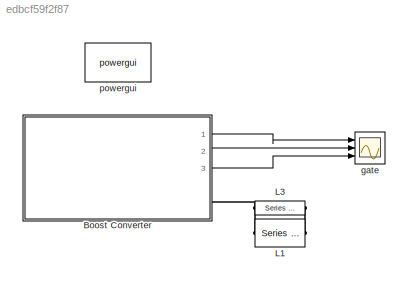
MODEL slx_edbcf59f2f87
KIND model
CONFIG AbsTol = auto
CONFIG EnableMultiTasking = on
CONFIG FixedStep = 1e-6
CONFIG MaxStep = auto
CONFIG MinStep = auto
CONFIG RelTol = 1e-3
CONFIG SampleTimeConstraint = Unconstrained
CONFIG Solver = FixedStepDiscrete
CONFIG SolverName = FixedStepDiscrete
CONFIG StartTime = 0.0
CONFIG StopTime = Inf
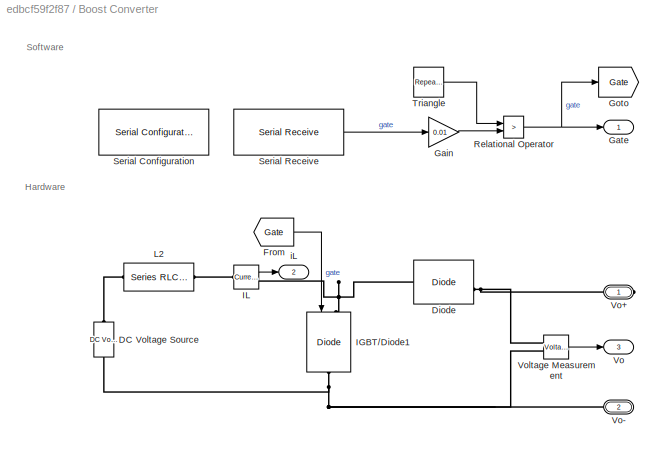
BLOCK [SubSystem] Boost Converter
  Ports = [0, 3, 0, 0, 0, 0, 2]
  RequestExecContextInheritance = off
BLOCK [Reference] Boost Converter/DC Voltage Source  REF=powerlib/Electrical
Sources/DC Voltage Source
  Ports = [0, 0, 0, 0, 0, 1, 1]
  SourceBlock = powerlib/Electrical\nSources/DC Voltage Source
  SourceProductBaseCode = PS
  SourceProductName = Simscape Electrical
  SourceType = DC Voltage Source
BLOCK [Reference] Boost Converter/Diode  REF=powerlib/Power
Electronics/Diode
  Ports = [0, 1, 0, 0, 0, 1, 1]
  SourceBlock = powerlib/Power\nElectronics/Diode
  SourceProductBaseCode = PS
  SourceProductName = Simscape Electrical
  SourceType = Diode
BLOCK [From] Boost Converter/From
  GotoTag = Gate
BLOCK [Gain] Boost Converter/Gain
  Gain = 0.01
  OutDataTypeStr = Inherit: Inherit via internal rule
  ParamDataTypeStr = Inherit: Inherit via internal rule
  SaturateOnIntegerOverflow = off
BLOCK [Outport] Boost Converter/Gate
  IconDisplay = Port number
BLOCK [Goto] Boost Converter/Goto
  GotoTag = Gate
BLOCK [Reference] Boost Converter/IGBT//Diode1  REF=powerlib/Power
Electronics/IGBT//Diode
  Ports = [1, 0, 0, 0, 0, 1, 1]
  SourceBlock = powerlib/Power\nElectronics/IGBT//Diode
  SourceProductBaseCode = PS
  SourceProductName = Simscape Electrical
  SourceType = IGBT/Diode
BLOCK [Reference] Boost Converter/IL  REF=powerlib/Measurements/Current Measurement
  Ports = [0, 1, 0, 0, 0, 1, 1]
  SourceBlock = powerlib/Measurements/Current Measurement
  SourceProductBaseCode = PS
  SourceProductName = Simscape Electrical
  SourceType = Current Measurement
  UserDataPersistent = on
BLOCK [Reference] Boost Converter/L2  REF=powerlib/Elements/Series RLC Branch
  Ports = [0, 0, 0, 0, 0, 1, 1]
  SourceBlock = powerlib/Elements/Series RLC Branch
  SourceProductBaseCode = PS
  SourceProductName = Simscape Electrical
  SourceType = Series RLC Branch
BLOCK [RelationalOperator] Boost Converter/Relational Operator
  InputSameDT = off
  Operator = >
  Ports = [2, 1]
BLOCK [Reference] Boost Converter/Serial Configuration  REF=instrumentlib/Serial Configuration
  Ports = []
  Priority = -200000
  SourceBlock = instrumentlib/Serial Configuration
  SourceProductBaseCode = IC
  SourceProductName = Instrument Control Toolbox
  SourceType = Serial Configuration
BLOCK [Reference] Boost Converter/Serial Receive  REF=instrumentlib/Serial Receive
  Ports = [0, 1]
  SourceBlock = instrumentlib/Serial Receive
  SourceProductBaseCode = IC
  SourceProductName = Instrument Control Toolbox
  SourceType = Serial Receive
BLOCK [Reference] Boost Converter/Triangle  REF=simulink/Sources/Repeating
Sequence
  Ports = [0, 1]
  SourceBlock = simulink/Sources/Repeating\nSequence
  SourceProductBaseCode = SL
  SourceProductName = Simulink
  SourceType = Repeating table
BLOCK [Outport] Boost Converter/Vo
  IconDisplay = Port number
  Port = 3
BLOCK [PMIOPort] Boost Converter/Vo+
  Side = Right
BLOCK [PMIOPort] Boost Converter/Vo-
  Port = 2
  Side = Right
BLOCK [Reference] Boost Converter/Voltage Measurement  REF=powerlib/Measurements/Voltage Measurement
  Ports = [0, 1, 0, 0, 0, 2]
  SourceBlock = powerlib/Measurements/Voltage Measurement
  SourceProductBaseCode = PS
  SourceProductName = Simscape Electrical
  SourceType = Voltage Measurement
  UserDataPersistent = on
BLOCK [Outport] Boost Converter/iL
  IconDisplay = Port number
  Port = 2
BLOCK [Reference] L1  REF=powerlib/Elements/Series RLC Branch
  Ports = [0, 0, 0, 0, 0, 1, 1]
  SourceBlock = powerlib/Elements/Series RLC Branch
  SourceProductBaseCode = PS
  SourceProductName = Simscape Electrical
  SourceType = Series RLC Branch
BLOCK [Reference] L3  REF=powerlib/Elements/Series RLC Branch
  Ports = [0, 0, 0, 0, 0, 1, 1]
  SourceBlock = powerlib/Elements/Series RLC Branch
  SourceProductBaseCode = PS
  SourceProductName = Simscape Electrical
  SourceType = Series RLC Branch
BLOCK [Scope] gate
  Floating = off
  NumInputPorts = 3
  Ports = [3]
  ScopeSpecificationString = Simulink.scopes.TimeScopeBlockCfg('CurrentConfiguration', extmgr.ConfigurationSet(extmgr.Configuration('Core','General UI',true),extmgr.Configuration('Core','Source UI',true),extmgr.Configuration('Sources','WiredSimulink',true,'DataLoggingVariableName','ScopeData1'),extmgr.Configuration('Visuals','Time Domain',true,'SerializedDisplays',{struct('MinYLimReal','-0.125','MaxYLimReal','1.125','YLabelRe...<+2825ch>
BLOCK [Reference] powergui  REF=powerlib/powergui
  Ports = []
  Priority = 1
  SourceBlock = powerlib/powergui
  SourceProductBaseCode = PS
  SourceProductName = Simscape Electrical
  SourceType = PSB option menu block
ANNOTATION Boost Converter: Hardware
ANNOTATION Boost Converter: Software
LINE Boost Converter/From:1 -> Boost Converter/IGBT//Diode1:1
LINE Boost Converter/Gain:1 -> Boost Converter/Relational Operator:2
LINE Boost Converter/IL:1 -> Boost Converter/iL:1
NET Boost Converter/Relational Operator:1 -> Boost Converter/Gate:1, Boost Converter/Goto:1
LINE Boost Converter/Serial Receive:1 -> Boost Converter/Gain:1
LINE Boost Converter/Triangle:1 -> Boost Converter/Relational Operator:1
LINE Boost Converter/Voltage Measurement:1 -> Boost Converter/Vo:1
LINE Boost Converter:1 -> gate:1
LINE Boost Converter:2 -> gate:2
LINE Boost Converter:3 -> gate:3
PNET net1: Boost Converter/DC Voltage Source:LConn1 -- Boost Converter/IGBT//Diode1:RConn1 -- Boost Converter/Vo-:RConn1 -- Boost Converter/Voltage Measurement:LConn2
PLINE Boost Converter/DC Voltage Source:RConn1 -- Boost Converter/L2:RConn1
PNET net2: Boost Converter/Diode:LConn1 -- Boost Converter/IGBT//Diode1:LConn1 -- Boost Converter/IL:RConn1
PNET net3: Boost Converter/Diode:RConn1 -- Boost Converter/Vo+:RConn1 -- Boost Converter/Voltage Measurement:LConn1
PLINE Boost Converter/IL:LConn1 -- Boost Converter/L2:LConn1
PNET net4: Boost Converter:RConn1 -- L1:LConn1 -- L3:LConn1
PNET net5: Boost Converter:RConn2 -- L1:RConn1 -- L3:RConn1
note: NET lines group one-source signal fan-out (src -> all destinations, sorted); 1:1 wires keep LINE; PNET lines group multi-terminal physical nets as a canonical sorted terminal list (undirected conserving connections); 2-terminal nets keep the pairwise PLINE form
